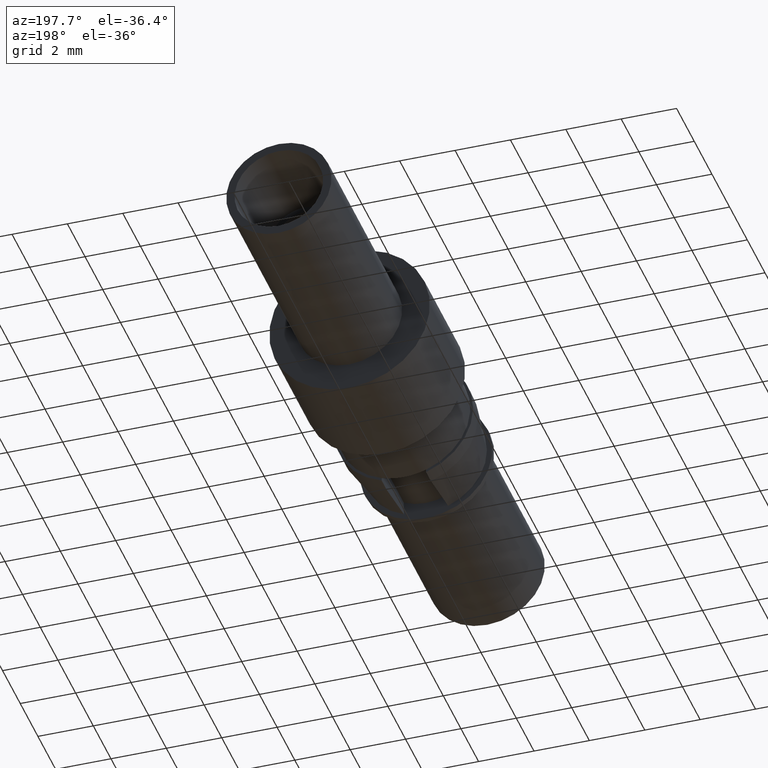
[diagram: clean part render]
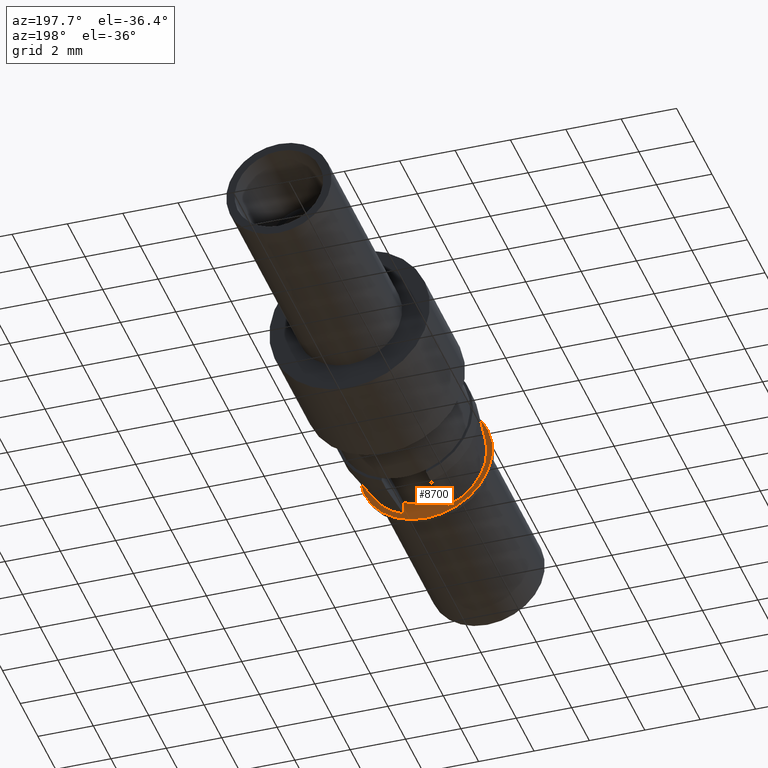
[diagram: same view with one face highlighted and labeled with its STEP entity id]
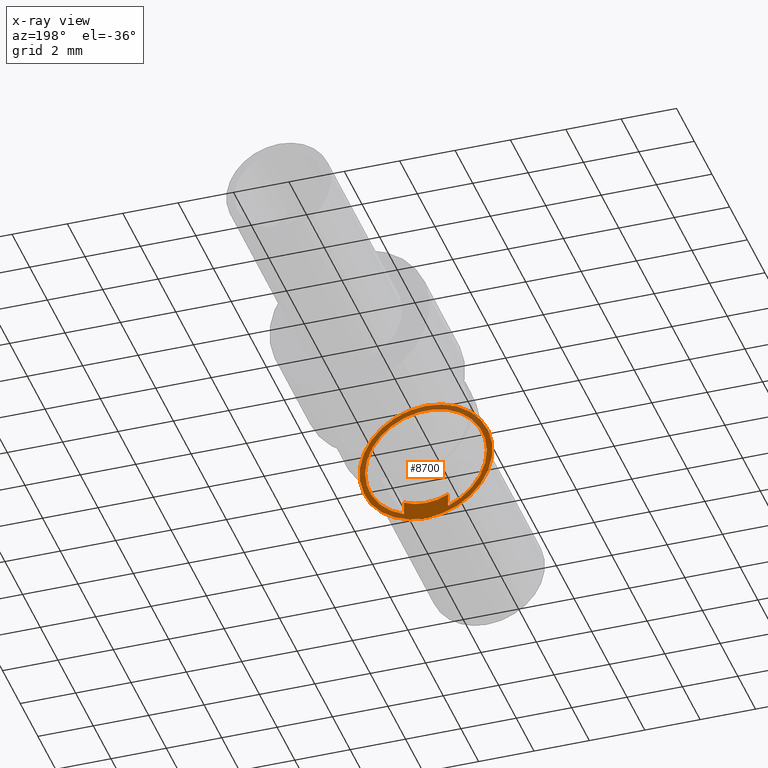
[diagram: x-ray of the same camera — body ghosted, the highlighted face saturated]
A machine part, auxiliary view. The second image highlights one B-rep face of the part: STEP entity #8700.
The next image is the same camera in x-ray: the body ghosted, the highlighted face saturated — about 34% of this face is hidden behind the body in this view.
In plain terms, the highlighted planar face has unit normal (-0, -1, 0).
Its self-contained STEP definition (entity closure, byte-faithful):
#100=CARTESIAN_POINT('',(66.6468230000002,74.9795149999963,
-13.8999999999995));
#110=VERTEX_POINT('',#100);
#160=CARTESIAN_POINT('',(66.6468230000002,77.3795149999963,
-13.8999999999995));
#170=DIRECTION('',(0.,0.,-1.));
#180=DIRECTION('',(0.,-1.,0.));
#190=AXIS2_PLACEMENT_3D('',#160,#170,#180);
#200=CIRCLE('',#190,2.4);
#210=CARTESIAN_POINT('',(66.6468230000002,79.7795149999963,
-13.8999999999995));
#220=VERTEX_POINT('',#210);
#230=EDGE_CURVE('',#220,#110,#200,.T.);
#3850=CARTESIAN_POINT('',(67.4468230000002,75.3301248468044,
-13.8999999999995));
#3860=VERTEX_POINT('',#3850);
#3890=CARTESIAN_POINT('',(67.4468230000002,0.,-13.8999999999995));
#3900=DIRECTION('',(0.,1.,0.));
#3910=VECTOR('',#3900,1.);
#3920=LINE('',#3890,#3910);
#3930=CARTESIAN_POINT('',(67.4468230000002,75.823076758369,
-13.8999999999995));
#3940=VERTEX_POINT('',#3930);
#3950=EDGE_CURVE('',#3860,#3940,#3920,.T.);
#7700=CARTESIAN_POINT('',(65.8468230000002,75.3301248468044,
-13.8999999999995));
#7710=VERTEX_POINT('',#7700);
#7740=CARTESIAN_POINT('',(66.6468230000002,77.3795149999963,
-13.8999999999995));
#7750=DIRECTION('',(0.,0.,1.));
#7760=DIRECTION('',(0.,1.,0.));
#7770=AXIS2_PLACEMENT_3D('',#7740,#7750,#7760);
#7780=CIRCLE('',#7770,2.19999999999999);
#7790=EDGE_CURVE('',#3860,#7710,#7780,.T.);
#7970=CARTESIAN_POINT('',(65.8468230000002,75.823076758369,
-13.8999999999995));
#7980=VERTEX_POINT('',#7970);
#8010=CARTESIAN_POINT('',(65.8468230000002,0.,-13.8999999999995));
#8020=DIRECTION('',(0.,-1.,0.));
#8030=VECTOR('',#8020,1.);
#8040=LINE('',#8010,#8030);
#8050=EDGE_CURVE('',#7980,#7710,#8040,.T.);
#8480=CARTESIAN_POINT('',(66.6468230000002,79.6295149999963,
-13.8999999999995));
#8490=DIRECTION('',(-0.,-0.,-1.));
#8500=DIRECTION('',(0.,-1.,0.));
#8510=AXIS2_PLACEMENT_3D('',#8480,#8490,#8500);
#8520=PLANE('',#8510);
#8530=EDGE_CURVE('',#110,#220,#200,.T.);
#8540=ORIENTED_EDGE('',*,*,#8530,.F.);
#8550=ORIENTED_EDGE('',*,*,#230,.F.);
#8560=EDGE_LOOP('',(#8550,#8540));
#8570=FACE_OUTER_BOUND('',#8560,.T.);
#8580=ORIENTED_EDGE('',*,*,#7790,.F.);
#8590=ORIENTED_EDGE('',*,*,#8050,.T.);
#8600=CARTESIAN_POINT('',(66.6468230000002,77.3795149999963,
-13.8999999999995));
#8610=DIRECTION('',(0.,0.,1.));
#8620=DIRECTION('',(1.,0.,0.));
#8630=AXIS2_PLACEMENT_3D('',#8600,#8610,#8620);
#8640=CIRCLE('',#8630,1.75);
#8650=EDGE_CURVE('',#7980,#3940,#8640,.T.);
#8660=ORIENTED_EDGE('',*,*,#8650,.F.);
#8670=ORIENTED_EDGE('',*,*,#3950,.T.);
#8680=EDGE_LOOP('',(#8670,#8660,#8590,#8580));
#8690=FACE_BOUND('',#8680,.T.);
#8700=ADVANCED_FACE('',(#8570,#8690),#8520,.F.);